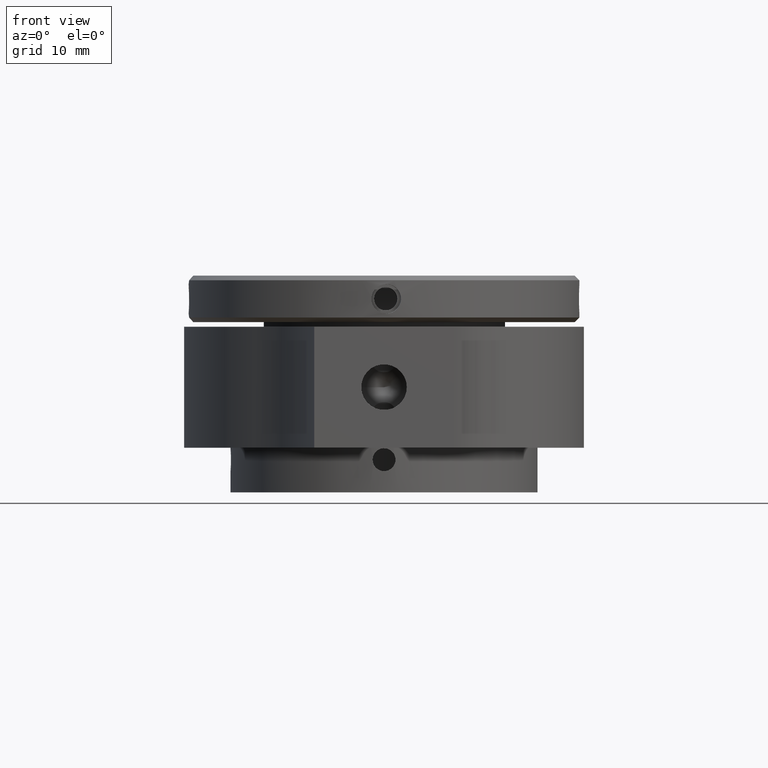
[diagram: clean part render]
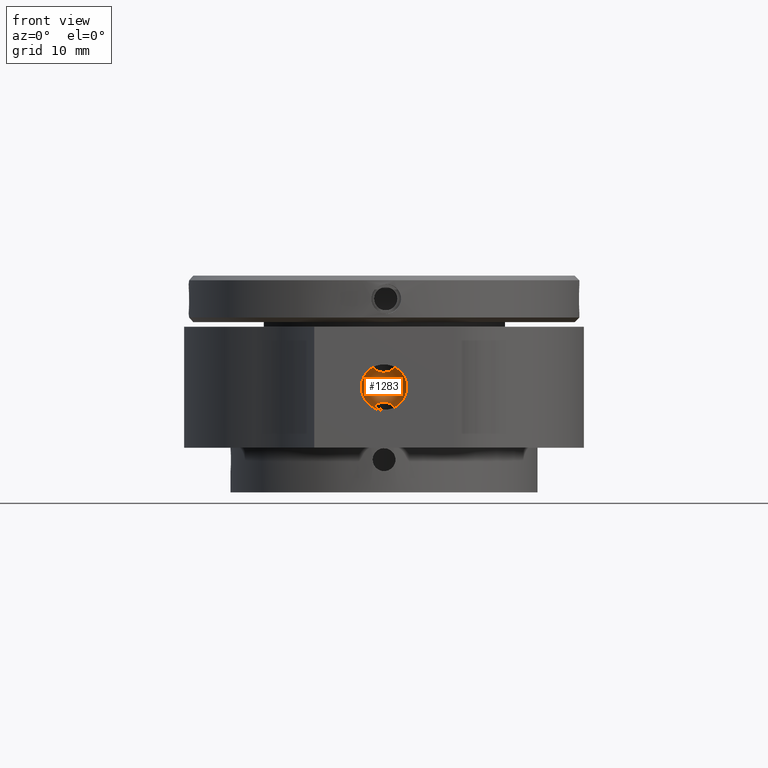
[diagram: same view with one face highlighted and labeled with its STEP entity id]
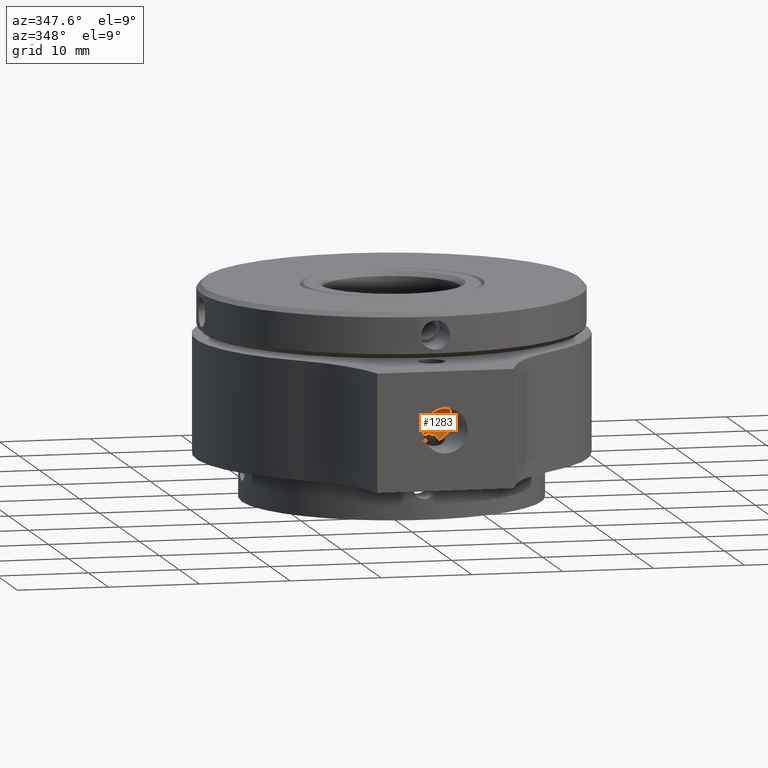
[diagram: same view with one face highlighted and labeled with its STEP entity id]
A machine part, front view. The second image highlights one B-rep face of the part: STEP entity #1283.
A second angle (auxiliary view) of the same face is appended — the face is thin or edge-on in the first view.
In plain terms, the highlighted conical surface has half-angle 59 deg.
Its self-contained STEP definition (entity closure, byte-faithful):
#56=CONICAL_SURFACE('',#1452,1.225,1.02974425867665);
#111=B_SPLINE_CURVE_WITH_KNOTS('',3,(#2647,#2648,#2649,#2650,#2651,#2652,
#2653,#2654,#2655,#2656,#2657,#2658,#2659,#2660,#2661,#2662,#2663,#2664),
 .UNSPECIFIED.,.F.,.F.,(4,2,2,2,2,2,2,2,4),(0.0169486107096363,0.0442079350448643,
0.0884158700897287,0.120259496173238,0.152103122256747,0.183946748340257,
0.215790374423766,0.259998309468631,0.287257633803858),.UNSPECIFIED.);
#112=B_SPLINE_CURVE_WITH_KNOTS('',3,(#2668,#2669,#2670,#2671,#2672,#2673,
#2674,#2675,#2676,#2677,#2678,#2679,#2680,#2681,#2682,#2683,#2684,#2685),
 .UNSPECIFIED.,.F.,.F.,(4,2,2,2,2,2,2,2,4),(1.08335743010526,1.11061675444049,
1.15482468948535,1.18666831556886,1.21851194165237,1.25035556773588,1.28219919381939,
1.32640712886426,1.35366645319948),.UNSPECIFIED.);
#181=FACE_OUTER_BOUND('',#281,.T.);
#281=EDGE_LOOP('',(#1054,#1055,#1056,#1057,#1058,#1059,#1060));
#335=LINE('',#2689,#385);
#385=VECTOR('',#1799,1.225);
#469=CIRCLE('',#1453,2.45);
#470=CIRCLE('',#1454,2.45);
#471=CIRCLE('',#1455,2.45);
#584=VERTEX_POINT('',#2645);
#585=VERTEX_POINT('',#2646);
#586=VERTEX_POINT('',#2665);
#587=VERTEX_POINT('',#2667);
#588=VERTEX_POINT('',#2686);
#589=VERTEX_POINT('',#2688);
#747=EDGE_CURVE('',#584,#585,#111,.T.);
#748=EDGE_CURVE('',#585,#586,#469,.T.);
#749=EDGE_CURVE('',#586,#587,#112,.T.);
#750=EDGE_CURVE('',#587,#588,#470,.T.);
#751=EDGE_CURVE('',#588,#589,#335,.T.);
#752=EDGE_CURVE('',#588,#584,#471,.T.);
#1054=ORIENTED_EDGE('',*,*,#747,.T.);
#1055=ORIENTED_EDGE('',*,*,#748,.T.);
#1056=ORIENTED_EDGE('',*,*,#749,.T.);
#1057=ORIENTED_EDGE('',*,*,#750,.T.);
#1058=ORIENTED_EDGE('',*,*,#751,.T.);
#1059=ORIENTED_EDGE('',*,*,#751,.F.);
#1060=ORIENTED_EDGE('',*,*,#752,.T.);
#1283=ADVANCED_FACE('',(#181),#56,.F.);
#1452=AXIS2_PLACEMENT_3D('',#2644,#1793,#1794);
#1453=AXIS2_PLACEMENT_3D('',#2666,#1795,#1796);
#1454=AXIS2_PLACEMENT_3D('',#2687,#1797,#1798);
#1455=AXIS2_PLACEMENT_3D('',#2690,#1800,#1801);
#1793=DIRECTION('center_axis',(6.12323399573676E-17,-1.,-6.12323399573677E-17));
#1794=DIRECTION('ref_axis',(1.,6.12323399573676E-17,-6.12323399573677E-17));
#1795=DIRECTION('center_axis',(6.12323399573676E-17,-1.,-6.12323399573677E-17));
#1796=DIRECTION('ref_axis',(1.,6.12323399573676E-17,-6.12323399573677E-17));
#1797=DIRECTION('center_axis',(6.12323399573676E-17,-1.,-6.12323399573677E-17));
#1798=DIRECTION('ref_axis',(1.,6.12323399573676E-17,-6.12323399573677E-17));
#1799=DIRECTION('',(0.857167300702112,0.515038074910054,8.40233460508115E-17));
#1800=DIRECTION('center_axis',(6.12323399573676E-17,-1.,-6.12323399573677E-17));
#1801=DIRECTION('ref_axis',(1.,6.12323399573676E-17,-6.12323399573677E-17));
#2644=CARTESIAN_POINT('Origin',(21.5,8.73605425830876,25.9988721972856));
#2645=CARTESIAN_POINT('',(20.3819660112501,8.,23.8188492616265));
#2646=CARTESIAN_POINT('',(22.6180339887499,8.,23.8188492616265));
#2647=CARTESIAN_POINT('Ctrl Pts',(20.3819660112501,8.,23.8188492616265));
#2648=CARTESIAN_POINT('Ctrl Pts',(20.425971946794,8.04920013164483,23.8883038767412));
#2649=CARTESIAN_POINT('Ctrl Pts',(20.4768988804333,8.09953957324721,23.9563033028732));
#2650=CARTESIAN_POINT('Ctrl Pts',(20.6287235536127,8.22716325136317,24.1185967543199));
#2651=CARTESIAN_POINT('Ctrl Pts',(20.7423499683305,8.3017063443067,24.2018070395145));
#2652=CARTESIAN_POINT('Ctrl Pts',(20.9542191459981,8.40060987587445,24.2997582076134));
#2653=CARTESIAN_POINT('Ctrl Pts',(21.0588982131618,8.43810078280163,24.3322512737735));
#2654=CARTESIAN_POINT('Ctrl Pts',(21.2787651546187,8.48787088240981,24.3725183232468));
#2655=CARTESIAN_POINT('Ctrl Pts',(21.3938545797216,8.5,24.3810119384609));
#2656=CARTESIAN_POINT('Ctrl Pts',(21.6061454202784,8.5,24.3810119384609));
#2657=CARTESIAN_POINT('Ctrl Pts',(21.7212348453813,8.48787088240981,24.3725183232468));
#2658=CARTESIAN_POINT('Ctrl Pts',(21.9411017868382,8.43810078280163,24.3322512737735));
#2659=CARTESIAN_POINT('Ctrl Pts',(22.0457808540019,8.40060987587445,24.2997582076134));
#2660=CARTESIAN_POINT('Ctrl Pts',(22.2576500316695,8.3017063443067,24.2018070395145));
#2661=CARTESIAN_POINT('Ctrl Pts',(22.3712764463873,8.22716325136317,24.1185967543199));
#2662=CARTESIAN_POINT('Ctrl Pts',(22.5231011195667,8.09953957324721,23.9563033028732));
#2663=CARTESIAN_POINT('Ctrl Pts',(22.574028053206,8.04920013164483,23.8883038767412));
#2664=CARTESIAN_POINT('Ctrl Pts',(22.6180339887499,8.,23.8188492616265));
#2665=CARTESIAN_POINT('',(22.6180339887499,8.,28.1788951329448));
#2666=CARTESIAN_POINT('Origin',(21.5,8.,25.9988721972856));
#2667=CARTESIAN_POINT('',(20.3819660112501,8.,28.1788951329448));
#2668=CARTESIAN_POINT('Ctrl Pts',(22.6180339887499,8.00000000000001,28.1788951329448));
#2669=CARTESIAN_POINT('Ctrl Pts',(22.574028053206,8.04920013164484,28.1094405178301));
#2670=CARTESIAN_POINT('Ctrl Pts',(22.5231011195667,8.09953957324721,28.0414410916981));
#2671=CARTESIAN_POINT('Ctrl Pts',(22.3712764463873,8.22716325136317,27.8791476402514));
#2672=CARTESIAN_POINT('Ctrl Pts',(22.2576500316695,8.3017063443067,27.7959373550568));
#2673=CARTESIAN_POINT('Ctrl Pts',(22.0457808540019,8.40060987587445,27.6979861869579));
#2674=CARTESIAN_POINT('Ctrl Pts',(21.9411017868382,8.43810078280163,27.6654931207978));
#2675=CARTESIAN_POINT('Ctrl Pts',(21.7212348453813,8.48787088240981,27.6252260713245));
#2676=CARTESIAN_POINT('Ctrl Pts',(21.6061454202784,8.5,27.6167324561104));
#2677=CARTESIAN_POINT('Ctrl Pts',(21.3938545797216,8.5,27.6167324561104));
#2678=CARTESIAN_POINT('Ctrl Pts',(21.2787651546187,8.48787088240981,27.6252260713245));
#2679=CARTESIAN_POINT('Ctrl Pts',(21.0588982131618,8.43810078280163,27.6654931207978));
#2680=CARTESIAN_POINT('Ctrl Pts',(20.9542191459981,8.40060987587445,27.6979861869579));
#2681=CARTESIAN_POINT('Ctrl Pts',(20.7423499683305,8.3017063443067,27.7959373550568));
#2682=CARTESIAN_POINT('Ctrl Pts',(20.6287235536127,8.22716325136317,27.8791476402514));
#2683=CARTESIAN_POINT('Ctrl Pts',(20.4768988804333,8.09953957324721,28.0414410916981));
#2684=CARTESIAN_POINT('Ctrl Pts',(20.425971946794,8.04920013164484,28.1094405178301));
#2685=CARTESIAN_POINT('Ctrl Pts',(20.3819660112501,8.,28.1788951329448));
#2686=CARTESIAN_POINT('',(19.05,8.,25.9988721972856));
#2687=CARTESIAN_POINT('Origin',(21.5,8.,25.9988721972856));
#2688=CARTESIAN_POINT('',(21.5,9.47210851661752,25.9988721972856));
#2689=CARTESIAN_POINT('',(20.275,8.73605425830876,25.9988721972856));
#2690=CARTESIAN_POINT('Origin',(21.5,8.,25.9988721972856));